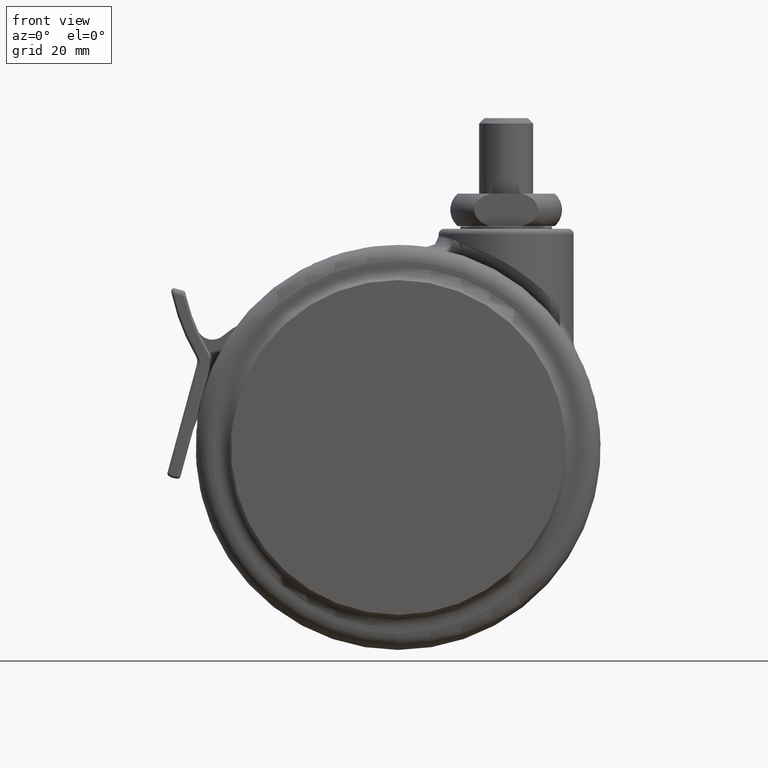
[diagram: clean part render]
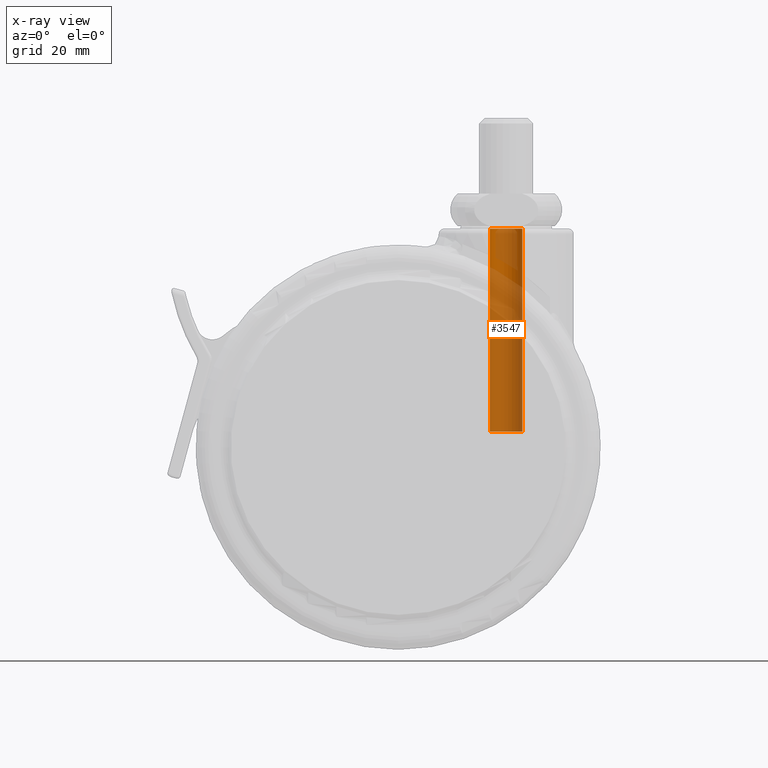
[diagram: x-ray — body ghosted, one internal face saturated and labeled with its STEP entity id]
A machine part, front view, then the same camera in x-ray: the body is ghosted and one INTERNAL B-rep face — a face not visible from any outside direction — is saturated and labeled: STEP entity #3547.
In plain terms, the highlighted cylindrical surface (edge-blend (fillet) strip) has radius 3 mm, axis along (0, 0, 1).
Its self-contained STEP definition (entity closure, byte-faithful):
#92 = ORIENTED_EDGE ( 'NONE', *, *, #6144, .T. ) ;
#134 = CIRCLE ( 'NONE', #4510, 3.000000000000000000 ) ;
#483 = CARTESIAN_POINT ( 'NONE',  ( 0.0000000000000000000, 2.842170943040399500E-014, -37.61339081420354800 ) ) ;
#492 = CARTESIAN_POINT ( 'NONE',  ( 0.0000000000000000000, 2.842170943040399500E-014, -1000.000000000000000 ) ) ;
#571 = VECTOR ( 'NONE', #6940, 1000.000000000000000 ) ;
#673 = ORIENTED_EDGE ( 'NONE', *, *, #6632, .F. ) ;
#744 = AXIS2_PLACEMENT_3D ( 'NONE', #3242, #7967, #8648 ) ;
#1019 = EDGE_CURVE ( 'NONE', #7878, #6802, #2240, .T. ) ;
#1077 = CARTESIAN_POINT ( 'NONE',  ( -3.000000000000000000, 2.878910347014820000E-014, -1000.000000000000000 ) ) ;
#1171 = DIRECTION ( 'NONE',  ( -1.000000000000000000, 0.0000000000000000000, 0.0000000000000000000 ) ) ;
#1242 = AXIS2_PLACEMENT_3D ( 'NONE', #492, #1865, #4536 ) ;
#1599 = ORIENTED_EDGE ( 'NONE', *, *, #6700, .F. ) ;
#1769 = DIRECTION ( 'NONE',  ( 0.0000000000000000000, 0.0000000000000000000, 1.000000000000000000 ) ) ;
#1813 = CARTESIAN_POINT ( 'NONE',  ( -3.000000000000000000, 2.878910347014820000E-014, -37.61339081420354800 ) ) ;
#1865 = DIRECTION ( 'NONE',  ( 0.0000000000000000000, 0.0000000000000000000, 1.000000000000000000 ) ) ;
#2240 = CIRCLE ( 'NONE', #744, 3.000000000000000000 ) ;
#2580 = ORIENTED_EDGE ( 'NONE', *, *, #1019, .T. ) ;
#2889 = CARTESIAN_POINT ( 'NONE',  ( 3.000000000000000000, 2.842170943040399500E-014, -1000.000000000000000 ) ) ;
#3242 = CARTESIAN_POINT ( 'NONE',  ( 0.0000000000000000000, 2.842170943040399500E-014, 0.0000000000000000000 ) ) ;
#3547 = ADVANCED_FACE ( 'NONE', ( #7481 ), #6848, .F. ) ;
#4510 = AXIS2_PLACEMENT_3D ( 'NONE', #483, #5207, #1171 ) ;
#4536 = DIRECTION ( 'NONE',  ( 1.000000000000000000, 0.0000000000000000000, 0.0000000000000000000 ) ) ;
#5207 = DIRECTION ( 'NONE',  ( -0.0000000000000000000, -0.0000000000000000000, 1.000000000000000000 ) ) ;
#5265 = CARTESIAN_POINT ( 'NONE',  ( -3.000000000000000000, 2.878910347014820000E-014, 0.0000000000000000000 ) ) ;
#5747 = LINE ( 'NONE', #1077, #7332 ) ;
#6047 = CARTESIAN_POINT ( 'NONE',  ( 3.000000000000000000, 2.842170943040399500E-014, -37.61339081420354800 ) ) ;
#6144 = EDGE_CURVE ( 'NONE', #8624, #7878, #7339, .T. ) ;
#6179 = EDGE_LOOP ( 'NONE', ( #673, #1599, #92, #2580 ) ) ;
#6570 = CARTESIAN_POINT ( 'NONE',  ( 3.000000000000000000, 2.842170943040399500E-014, 0.0000000000000000000 ) ) ;
#6632 = EDGE_CURVE ( 'NONE', #8531, #6802, #5747, .T. ) ;
#6700 = EDGE_CURVE ( 'NONE', #8624, #8531, #134, .T. ) ;
#6802 = VERTEX_POINT ( 'NONE', #5265 ) ;
#6848 = CYLINDRICAL_SURFACE ( 'NONE', #1242, 3.000000000000000000 ) ;
#6940 = DIRECTION ( 'NONE',  ( 0.0000000000000000000, 0.0000000000000000000, 1.000000000000000000 ) ) ;
#7332 = VECTOR ( 'NONE', #1769, 1000.000000000000000 ) ;
#7339 = LINE ( 'NONE', #2889, #571 ) ;
#7481 = FACE_OUTER_BOUND ( 'NONE', #6179, .T. ) ;
#7878 = VERTEX_POINT ( 'NONE', #6570 ) ;
#7967 = DIRECTION ( 'NONE',  ( -0.0000000000000000000, -0.0000000000000000000, 1.000000000000000000 ) ) ;
#8531 = VERTEX_POINT ( 'NONE', #1813 ) ;
#8624 = VERTEX_POINT ( 'NONE', #6047 ) ;
#8648 = DIRECTION ( 'NONE',  ( -1.000000000000000000, 0.0000000000000000000, 0.0000000000000000000 ) ) ;